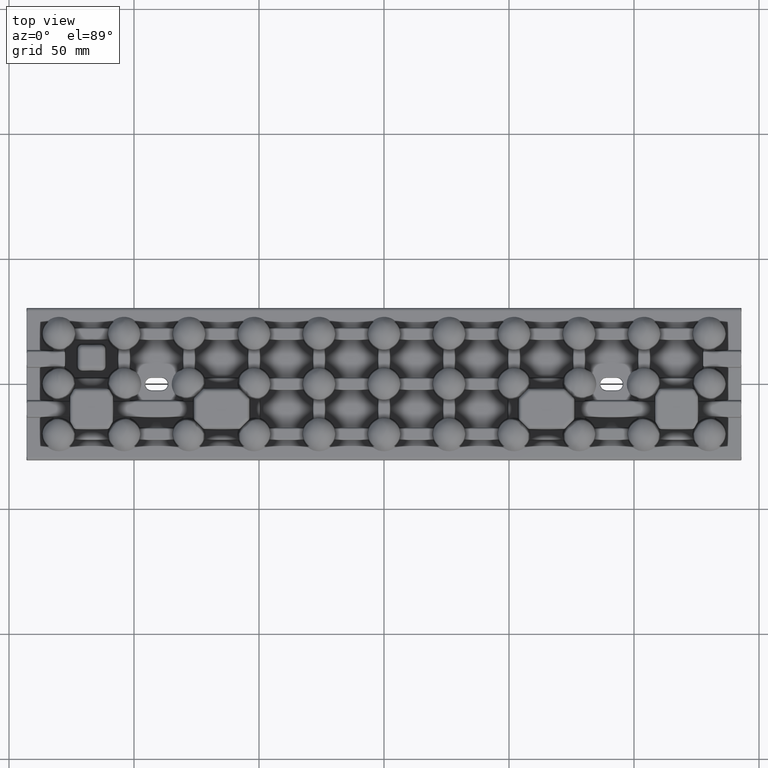
[diagram: clean part render]
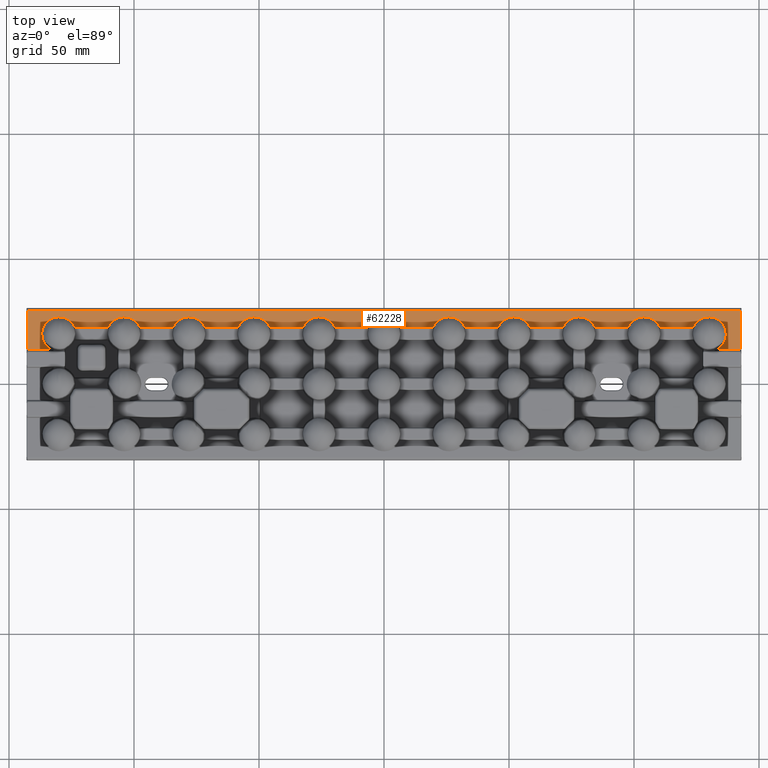
[diagram: same view with one face highlighted and labeled with its STEP entity id]
A machine part, top view. The second image highlights one B-rep face of the part: STEP entity #62228.
In plain terms, the highlighted planar face has unit normal (-0, 0, 1).
Its self-contained STEP definition (entity closure, byte-faithful):
#525 = VERTEX_POINT ( 'NONE', #96954 ) ;
#1061 = CARTESIAN_POINT ( 'NONE',  ( 71.68403363611628300, 22.74142219370215300, 2.000000000000000000 ) ) ;
#1085 = DIRECTION ( 'NONE',  ( 1.000000000000000000, -0.0000000000000000000, 0.0000000000000000000 ) ) ;
#1387 = DIRECTION ( 'NONE',  ( 1.000000000000000000, 3.844641663027053000E-016, 0.0000000000000000000 ) ) ;
#1473 = B_SPLINE_CURVE_WITH_KNOTS ( 'NONE', 3,
 ( #45014, #36620, #53396, #3391, #61727, #11747, #70157, #20220, #78554, #28593, #86902, #36974, #95334, #45369, #103725, #53768, #3754, #62093, #12123, #70524, #20588, #78909, #28951, #87262, #37343, #95680, #45726, #104091, #54134, #4118, #62459, #12498, #70898, #20955, #79279, #29316, #87631, #37714, #96028, #46096, #104468, #54495, #4463, #62822, #12876, #71272, #21318, #79640, #29691, #87992 ),
 .UNSPECIFIED., .F., .F.,
 ( 4, 2, 2, 2, 2, 2, 2, 2, 2, 2, 2, 2, 2, 2, 2, 2, 2, 2, 2, 2, 2, 2, 2, 2, 4 ),
 ( 0.01050679117040168900, 0.01216088172284491300, 0.01381497227528813800, 0.01546906282773136100, 0.01629610810395297500, 0.01712315338017458500, 0.01795019865639619800, 0.01877724393261780800, 0.02043133448506103500, 0.02125837976128268400, 0.02208542503750433500, 0.02291247031372598700, 0.02373951558994764200, 0.02539360614239089000, 0.02704769669483413800, 0.02870178724727739200, 0.02911530988538819900, 0.02952883252349900600, 0.03035587779972062600, 0.03200996835216387400, 0.03283701362838549500, 0.03366405890460711500, 0.03449110418082873600, 0.03531814945705035600, 0.03697224000949365900 ),
 .UNSPECIFIED. ) ;
#1581 = ORIENTED_EDGE ( 'NONE', *, *, #22770, .F. ) ;
#1624 = CARTESIAN_POINT ( 'NONE',  ( -45.68403368330071100, 22.74142219370213900, 2.000000000000000000 ) ) ;
#1893 = CARTESIAN_POINT ( 'NONE',  ( 53.65886335899717400, 26.71010636995210100, 2.000000000000000900 ) ) ;
#1982 = CARTESIAN_POINT ( 'NONE',  ( -47.15318976483481400, 24.94780777290223000, 1.999999999999998700 ) ) ;
#2262 = CARTESIAN_POINT ( 'NONE',  ( 46.92741899588675400, 24.71284940532203900, 2.000000000000000900 ) ) ;
#2339 = CARTESIAN_POINT ( 'NONE',  ( -54.29938008339328800, 26.52378527264588500, 1.999999999999998200 ) ) ;
#3391 = CARTESIAN_POINT ( 'NONE',  ( -124.8295459170856700, 24.62497408288704300, 2.000000000000000000 ) ) ;
#3461 = CARTESIAN_POINT ( 'NONE',  ( 31.07662389358332400, 24.70830153699674300, 2.000000000000000000 ) ) ;
#3751 = EDGE_CURVE ( 'NONE', #100229, #30553, #17064, .T. ) ;
#3754 = CARTESIAN_POINT ( 'NONE',  ( -131.3813885012870100, 26.78502122997835900, 1.999999999999998700 ) ) ;
#3819 = CARTESIAN_POINT ( 'NONE',  ( 24.66840279518008900, 26.80502343992601800, 1.999999999999999600 ) ) ;
#3978 = CARTESIAN_POINT ( 'NONE',  ( -8.743261924239526700E-015, 22.74142219370212500, 2.000000000000000000 ) ) ;
#4021 = EDGE_CURVE ( 'NONE', #9704, #51110, #84099, .T. ) ;
#4118 = CARTESIAN_POINT ( 'NONE',  ( -136.6881866202876700, 21.68818897065874700, 2.000000000000000000 ) ) ;
#4186 = CARTESIAN_POINT ( 'NONE',  ( 19.68403363611626800, 22.74142219370213200, 2.000000000000000000 ) ) ;
#4306 = CARTESIAN_POINT ( 'NONE',  ( -98.31043581871257700, 23.92543141037349500, 2.000000000000126100 ) ) ;
#4463 = CARTESIAN_POINT ( 'NONE',  ( -135.6995518879815800, 16.09428452817178400, 2.000000000000000900 ) ) ;
#4672 = CARTESIAN_POINT ( 'NONE',  ( -103.6633250690733500, 26.89732937972348000, 2.000000000000001800 ) ) ;
#4801 = CARTESIAN_POINT ( 'NONE',  ( 83.68956418128735200, 23.92543141037349100, 2.000000000000126600 ) ) ;
#5037 = CARTESIAN_POINT ( 'NONE',  ( -110.0366157451012200, 23.34722910782369400, 2.000000000000016400 ) ) ;
#5163 = CARTESIAN_POINT ( 'NONE',  ( 78.33667493092677600, 26.89732937972347300, 1.999999999999999100 ) ) ;
#5244 = CARTESIAN_POINT ( 'NONE',  ( -22.48139286674539500, 25.96433862969999900, 2.000000000000000900 ) ) ;
#5362 = CARTESIAN_POINT ( 'NONE',  ( -76.66701719146409700, 26.77987722715999700, 2.000000000000048000 ) ) ;
#5408 = CARTESIAN_POINT ( 'NONE',  ( 108.3475486365031300, 25.39348038392911300, 1.999999999999999600 ) ) ;
#5458 = CARTESIAN_POINT ( 'NONE',  ( 3.518607133254579600, 25.96433862970001600, 2.000000000000001800 ) ) ;
#5508 = CARTESIAN_POINT ( 'NONE',  ( 136.8800571590407700, 19.46677785379592900, 2.000000000000001800 ) ) ;
#5604 = CARTESIAN_POINT ( 'NONE',  ( -29.51261776644699400, 25.96782557411317400, 2.000000000000344200 ) ) ;
#5717 = CARTESIAN_POINT ( 'NONE',  ( -83.49618869553401600, 24.19940417971495000, 1.999999999999999600 ) ) ;
#5767 = CARTESIAN_POINT ( 'NONE',  ( 101.3839113837305800, 26.40594479879622700, 2.000000000000000400 ) ) ;
#5819 = CARTESIAN_POINT ( 'NONE',  ( -3.512617766447011300, 25.96782557411317100, 2.000000000000345900 ) ) ;
#5873 = CARTESIAN_POINT ( 'NONE',  ( 135.5278999141507400, 24.18065380832087300, 1.999999999999998700 ) ) ;
#6231 = CARTESIAN_POINT ( 'NONE',  ( 129.7330463235023800, 26.89771426808825800, 2.000000000000019500 ) ) ;
#6237 = VERTEX_POINT ( 'NONE', #68507 ) ;
#6427 = VERTEX_POINT ( 'NONE', #29113 ) ;
#6593 = CARTESIAN_POINT ( 'NONE',  ( 123.6840336361162800, 22.74142219370217100, 2.000000000000000000 ) ) ;
#6824 = B_SPLINE_CURVE_WITH_KNOTS ( 'NONE', 3,
 ( #80221, #21902, #38646, #96980, #47048, #105414, #55392, #5408, #63775, #13809, #72211, #22272, #80595, #30620, #88935, #39009, #97342, #47411, #105779, #55760, #5767, #64127, #14178, #72583, #22624, #80949, #30987, #89298, #39361, #97708, #47782, #106137 ),
 .UNSPECIFIED., .F., .F.,
 ( 4, 2, 2, 2, 2, 2, 2, 2, 2, 2, 2, 2, 2, 2, 2, 4 ),
 ( 0.01050679117040258200, 0.01150546915756741800, 0.01250414714473225600, 0.01350282513189709200, 0.01450150311906192900, 0.01550018110622676500, 0.01649885909339160100, 0.01749753708055643700, 0.01849621506772127600, 0.02049357104205099000, 0.02149224902921586400, 0.02249092701638074500, 0.02348960500354561900, 0.02448828299071050000, 0.02548696097787537400, 0.02648563896504025100 ),
 .UNSPECIFIED. ) ;
#7005 = ORIENTED_EDGE ( 'NONE', *, *, #47796, .T. ) ;
#7018 = CARTESIAN_POINT ( 'NONE',  ( 71.96338425489877000, 23.34722910782368300, 2.000000000000016900 ) ) ;
#8262 = DIRECTION ( 'NONE',  ( 1.000000000000000000, 3.844641663027053000E-016, 0.0000000000000000000 ) ) ;
#8266 = EDGE_CURVE ( 'NONE', #59621, #31580, #10720, .T. ) ;
#8821 = EDGE_LOOP ( 'NONE', ( #42889, #78188, #62479, #38361, #83918, #48753, #74436, #76119, #34414, #30136, #75894, #7005, #40722, #17994, #95043, #51969, #96937, #83819, #1581, #69050, #68134, #70832, #16427, #75780, #90425, #10477 ) ) ;
#9450 = DIRECTION ( 'NONE',  ( -0.0000000000000000000, 1.000000000000000000, -0.0000000000000000000 ) ) ;
#9704 = VERTEX_POINT ( 'NONE', #55310 ) ;
#9882 = CARTESIAN_POINT ( 'NONE',  ( 58.03490855911542200, 23.35028556358901500, 2.000000000000127000 ) ) ;
#10246 = CARTESIAN_POINT ( 'NONE',  ( 52.67279278684331700, 26.87350029363054200, 2.000000000000048000 ) ) ;
#10327 = CARTESIAN_POINT ( 'NONE',  ( -47.92227134485957400, 25.59953831529823600, 1.999999999999999100 ) ) ;
#10477 = ORIENTED_EDGE ( 'NONE', *, *, #78360, .T. ) ;
#10509 = LINE ( 'NONE', #95835, #35394 ) ;
#10594 = CARTESIAN_POINT ( 'NONE',  ( 46.30985570189906800, 23.92467734612563400, 2.000000000000016400 ) ) ;
#10676 = CARTESIAN_POINT ( 'NONE',  ( -55.22142261670096300, 26.12818340793718600, 2.000000000000000400 ) ) ;
#10720 = B_SPLINE_CURVE_WITH_KNOTS ( 'NONE', 3,
 ( #73129, #14729, #64674, #13401, #71789, #21851, #80164, #30216, #88522, #38596, #96927, #46994, #105364, #55339, #5362, #63728, #13760, #72159, #22221, #80544, #30571, #88880, #38962, #97294, #47362, #105725, #55708, #5717, #64075, #14129, #72536, #22577 ),
 .UNSPECIFIED., .F., .F.,
 ( 4, 2, 2, 2, 2, 2, 2, 2, 2, 2, 2, 2, 2, 2, 2, 4 ),
 ( 0.01050679117040293100, 0.01150546915756781900, 0.01250414714473270700, 0.01350282513189759300, 0.01450150311906248100, 0.01550018110622736900, 0.01649885909339225700, 0.01749753708055714500, 0.01849621506772203300, 0.02049357104205185000, 0.02149224902921675900, 0.02249092701638166800, 0.02348960500354657600, 0.02448828299071148500, 0.02548696097787639400, 0.02648563896504130300 ),
 .UNSPECIFIED. ) ;
#11705 = VERTEX_POINT ( 'NONE', #72161 ) ;
#11747 = CARTESIAN_POINT ( 'NONE',  ( -126.0767058337017100, 25.72650529445625300, 2.000000000000000400 ) ) ;
#11822 = CARTESIAN_POINT ( 'NONE',  ( 30.34754863650315900, 25.39348038392907400, 2.000000000000000000 ) ) ;
#12123 = CARTESIAN_POINT ( 'NONE',  ( -132.4490486307383300, 26.46762314007032700, 2.000000000000278000 ) ) ;
#12199 = CARTESIAN_POINT ( 'NONE',  ( 23.38391138373050600, 26.40594479879618800, 2.000000000000000900 ) ) ;
#12498 = CARTESIAN_POINT ( 'NONE',  ( -136.8841424345645200, 20.44388402342935200, 1.999999999999999600 ) ) ;
#12705 = CARTESIAN_POINT ( 'NONE',  ( -98.92337610641671100, 24.70830153699671800, 2.000000000000000900 ) ) ;
#12876 = CARTESIAN_POINT ( 'NONE',  ( -135.2013613072751100, 15.43621432150835900, 2.000000000000000900 ) ) ;
#12999 = CARTESIAN_POINT ( 'NONE',  ( -97.68403368330074000, 22.74142219370216000, 2.000000000000000000 ) ) ;
#13071 = CARTESIAN_POINT ( 'NONE',  ( -105.3315972048198400, 26.80502343992605300, 2.000000000000000000 ) ) ;
#13189 = CARTESIAN_POINT ( 'NONE',  ( 133.5060753273697000, 14.01131569409189800, 2.000000000000000000 ) ) ;
#13207 = CARTESIAN_POINT ( 'NONE',  ( 83.07662389358328900, 24.70830153699677500, 2.000000000000000400 ) ) ;
#13288 = CARTESIAN_POINT ( 'NONE',  ( -19.96509144088458100, 23.35028556358903600, 2.000000000000127500 ) ) ;
#13401 = CARTESIAN_POINT ( 'NONE',  ( -72.31043581871261900, 23.92543141037347400, 2.000000000000125700 ) ) ;
#13440 = CARTESIAN_POINT ( 'NONE',  ( -110.3159663638836700, 22.74142219370216400, 2.000000000000000000 ) ) ;
#13552 = CARTESIAN_POINT ( 'NONE',  ( 134.6130077430347300, 14.83575689011853200, 2.000000000000000900 ) ) ;
#13568 = CARTESIAN_POINT ( 'NONE',  ( 76.66840279518012800, 26.80502343992608500, 1.999999999999997800 ) ) ;
#13647 = CARTESIAN_POINT ( 'NONE',  ( -23.37998032808857500, 26.40442383509638800, 2.000000000000249600 ) ) ;
#13760 = CARTESIAN_POINT ( 'NONE',  ( -77.66332506907335200, 26.89732937972348000, 2.000000000000001800 ) ) ;
#13809 = CARTESIAN_POINT ( 'NONE',  ( 107.5186071332545600, 25.96433862970001300, 2.000000000000001300 ) ) ;
#13865 = CARTESIAN_POINT ( 'NONE',  ( 2.620019671911416400, 26.40442383509640600, 2.000000000000250000 ) ) ;
#13912 = CARTESIAN_POINT ( 'NONE',  ( 136.9094586007898000, 20.02423744197734500, 2.000000000000000000 ) ) ;
#14014 = CARTESIAN_POINT ( 'NONE',  ( -30.34199554471782200, 25.39795377517398500, 2.000000000000000400 ) ) ;
#14129 = CARTESIAN_POINT ( 'NONE',  ( -84.03661574510121600, 23.34722910782367600, 2.000000000000016900 ) ) ;
#14178 = CARTESIAN_POINT ( 'NONE',  ( 100.4873822335530600, 25.96782557411320300, 2.000000000000344200 ) ) ;
#14219 = CARTESIAN_POINT ( 'NONE',  ( -4.341995544717814700, 25.39795377517398800, 1.999999999999998700 ) ) ;
#14276 = CARTESIAN_POINT ( 'NONE',  ( 134.5897527558156800, 25.18505216401842300, 1.999999999999999600 ) ) ;
#14635 = CARTESIAN_POINT ( 'NONE',  ( 128.9083000464806600, 26.81897808859146800, 1.999999999999998700 ) ) ;
#14729 = CARTESIAN_POINT ( 'NONE',  ( -71.81295640468401600, 23.04840657323874000, 2.000000000000000900 ) ) ;
#15408 = VECTOR ( 'NONE', #28707, 1000.000000000000000 ) ;
#15443 = CARTESIAN_POINT ( 'NONE',  ( 71.68403363611628300, 22.74142219370215300, 2.000000000000000000 ) ) ;
#16251 = EDGE_CURVE ( 'NONE', #11705, #58811, #52688, .T. ) ;
#16427 = ORIENTED_EDGE ( 'NONE', *, *, #55676, .F. ) ;
#17064 = LINE ( 'NONE', #89982, #103215 ) ;
#17359 = LINE ( 'NONE', #102752, #34332 ) ;
#17994 = ORIENTED_EDGE ( 'NONE', *, *, #78515, .T. ) ;
#18209 = CARTESIAN_POINT ( 'NONE',  ( 110.3159663166991900, 22.74142219370216400, 2.000000000000000000 ) ) ;
#18359 = CARTESIAN_POINT ( 'NONE',  ( 57.49787271980760300, 24.19700556022038300, 2.000000000000001800 ) ) ;
#18723 = CARTESIAN_POINT ( 'NONE',  ( 51.32756888647256200, 26.89737252408379900, 2.000000000000000900 ) ) ;
#18804 = CARTESIAN_POINT ( 'NONE',  ( -48.77293862906505200, 26.12530864271638400, 2.000000000000249100 ) ) ;
#19085 = CARTESIAN_POINT ( 'NONE',  ( 45.81312116069186400, 23.04879900970685100, 2.000000000000019500 ) ) ;
#19162 = CARTESIAN_POINT ( 'NONE',  ( -56.07186254801212000, 25.60377779600749500, 2.000000000000345500 ) ) ;
#19204 = VECTOR ( 'NONE', #1085, 1000.000000000000000 ) ;
#19598 = DIRECTION ( 'NONE',  ( 1.000000000000000000, -3.844641663027053000E-016, 0.0000000000000000000 ) ) ;
#19844 = CARTESIAN_POINT ( 'NONE',  ( 142.4984859507544300, 13.77131854326629700, 2.000000000000000000 ) ) ;
#20220 = CARTESIAN_POINT ( 'NONE',  ( -127.2988571125833500, 26.36844435502074200, 2.000000000000307800 ) ) ;
#20290 = CARTESIAN_POINT ( 'NONE',  ( 29.51860713325454500, 25.96433862970004100, 2.000000000000000000 ) ) ;
#20588 = CARTESIAN_POINT ( 'NONE',  ( -133.2065514136881700, 26.13297702569553800, 1.999999999999998700 ) ) ;
#20657 = CARTESIAN_POINT ( 'NONE',  ( 22.48738223355295000, 25.96782557411314200, 2.000000000000344600 ) ) ;
#20739 = FACE_OUTER_BOUND ( 'NONE', #8821, .T. ) ;
#20955 = CARTESIAN_POINT ( 'NONE',  ( -136.9094387876033600, 20.02580886452776500, 2.000000000000000000 ) ) ;
#21155 = CARTESIAN_POINT ( 'NONE',  ( -99.65245136349685100, 25.39348038392908100, 2.000000000000001300 ) ) ;
#21318 = CARTESIAN_POINT ( 'NONE',  ( -134.6192237337673100, 14.84122988422828700, 2.000000000000001800 ) ) ;
#21521 = CARTESIAN_POINT ( 'NONE',  ( -106.6160886162694500, 26.40594479879622700, 1.999999999999998200 ) ) ;
#21646 = CARTESIAN_POINT ( 'NONE',  ( 82.34754863650320500, 25.39348038392903500, 2.000000000000000400 ) ) ;
#21851 = CARTESIAN_POINT ( 'NONE',  ( -72.92337610641666900, 24.70830153699670700, 2.000000000000000900 ) ) ;
#21902 = CARTESIAN_POINT ( 'NONE',  ( 110.1870435953159800, 23.04840657323876500, 1.999999999999999100 ) ) ;
#21953 = VERTEX_POINT ( 'NONE', #18209 ) ;
#21999 = CARTESIAN_POINT ( 'NONE',  ( 135.1985135776881700, 15.43279648219079700, 2.000000000000383200 ) ) ;
#22015 = CARTESIAN_POINT ( 'NONE',  ( 75.38391138373060600, 26.40594479879623800, 1.999999999999999600 ) ) ;
#22103 = CARTESIAN_POINT ( 'NONE',  ( -24.34113664100284400, 26.71010636995210100, 1.999999999999997800 ) ) ;
#22221 = CARTESIAN_POINT ( 'NONE',  ( -79.33159720481978600, 26.80502343992607500, 2.000000000000002200 ) ) ;
#22272 = CARTESIAN_POINT ( 'NONE',  ( 106.6200196719113400, 26.40442383509638800, 2.000000000000249600 ) ) ;
#22317 = CARTESIAN_POINT ( 'NONE',  ( 1.658863358997132900, 26.71010636995212600, 1.999999999999999100 ) ) ;
#22377 = CARTESIAN_POINT ( 'NONE',  ( 136.8843079929510200, 20.44211632433898300, 2.000000000000000900 ) ) ;
#22467 = CARTESIAN_POINT ( 'NONE',  ( -31.07258100411326800, 24.71284940532203900, 1.999999999999999600 ) ) ;
#22577 = CARTESIAN_POINT ( 'NONE',  ( -84.31596636388367500, 22.74142219370215300, 2.000000000000000000 ) ) ;
#22624 = CARTESIAN_POINT ( 'NONE',  ( 99.65800445528218200, 25.39795377517399900, 2.000000000000000400 ) ) ;
#22673 = CARTESIAN_POINT ( 'NONE',  ( -5.072581004113274600, 24.71284940532203900, 2.000000000000000900 ) ) ;
#22723 = CARTESIAN_POINT ( 'NONE',  ( 133.9303827433578000, 25.70043393727760900, 1.999999999999996200 ) ) ;
#22770 = EDGE_CURVE ( 'NONE', #525, #56014, #63526, .T. ) ;
#23076 = CARTESIAN_POINT ( 'NONE',  ( 127.5570544101998800, 26.48777687495147900, 1.999999999999999100 ) ) ;
#23766 = CARTESIAN_POINT ( 'NONE',  ( 8.743261924239526700E-015, 22.74142219370212100, 2.000000000000000000 ) ) ;
#24937 = CARTESIAN_POINT ( 'NONE',  ( 0.0000000000000000000, 0.0000000000000000000, 2.000000000000000000 ) ) ;
#25070 = EDGE_CURVE ( 'NONE', #107484, #75917, #75268, .T. ) ;
#25666 = VERTEX_POINT ( 'NONE', #19844 ) ;
#26131 = EDGE_CURVE ( 'NONE', #25666, #62277, #77943, .T. ) ;
#26480 = VERTEX_POINT ( 'NONE', #72271 ) ;
#26710 = CARTESIAN_POINT ( 'NONE',  ( 56.84681023516515800, 24.94780777290220900, 2.000000000000000000 ) ) ;
#27082 = CARTESIAN_POINT ( 'NONE',  ( 49.70061991660671900, 26.52378527264589500, 1.999999999999998700 ) ) ;
#27168 = CARTESIAN_POINT ( 'NONE',  ( -49.69812992924821800, 26.52287293732658200, 1.999999999999998700 ) ) ;
#27531 = CARTESIAN_POINT ( 'NONE',  ( -56.84188014826261800, 24.95268246277602800, 2.000000000000000000 ) ) ;
#28306 = CARTESIAN_POINT ( 'NONE',  ( 32.18704359531600500, 23.04840657323873300, 2.000000000000001300 ) ) ;
#28593 = CARTESIAN_POINT ( 'NONE',  ( -128.0891229049415800, 26.64215272814847100, 2.000000000000001300 ) ) ;
#28660 = CARTESIAN_POINT ( 'NONE',  ( 28.62001967191137900, 26.40442383509641600, 2.000000000000248700 ) ) ;
#28707 = DIRECTION ( 'NONE',  ( 1.000000000000000000, -3.844641663027053000E-016, 0.0000000000000000000 ) ) ;
#28951 = CARTESIAN_POINT ( 'NONE',  ( -133.9167426579385000, 25.70975614590128400, 1.999999999999996700 ) ) ;
#29024 = CARTESIAN_POINT ( 'NONE',  ( 21.65800445528216400, 25.39795377517396700, 1.999999999999999100 ) ) ;
#29113 = CARTESIAN_POINT ( 'NONE',  ( 45.68403363611626100, 22.74142219370214200, 2.000000000000000000 ) ) ;
#29316 = CARTESIAN_POINT ( 'NONE',  ( -136.8802252202792700, 19.46819107766179600, 1.999999999999998700 ) ) ;
#29430 = VECTOR ( 'NONE', #107752, 1000.000000000000000 ) ;
#29520 = CARTESIAN_POINT ( 'NONE',  ( -100.4813928667454400, 25.96433862970002700, 2.000000000000000400 ) ) ;
#29691 = CARTESIAN_POINT ( 'NONE',  ( -133.5064853437754100, 14.01151046092394400, 1.999999999999999100 ) ) ;
#29743 = LINE ( 'NONE', #78672, #15408 ) ;
#29879 = CARTESIAN_POINT ( 'NONE',  ( -107.5126177664470200, 25.96782557411314900, 2.000000000000345500 ) ) ;
#30015 = CARTESIAN_POINT ( 'NONE',  ( -58.31596636388368900, 22.74142219370214200, 2.000000000000000000 ) ) ;
#30016 = CARTESIAN_POINT ( 'NONE',  ( 81.51860713325459100, 25.96433862970002300, 2.000000000000001300 ) ) ;
#30097 = CARTESIAN_POINT ( 'NONE',  ( -19.68403368330072200, 22.74142219370212800, 2.000000000000000000 ) ) ;
#30136 = ORIENTED_EDGE ( 'NONE', *, *, #70085, .T. ) ;
#30216 = CARTESIAN_POINT ( 'NONE',  ( -73.65245136349680900, 25.39348038392907700, 2.000000000000001300 ) ) ;
#30314 = CARTESIAN_POINT ( 'NONE',  ( 6.315966316699254800, 22.74142219370212800, 2.000000000000000000 ) ) ;
#30366 = CARTESIAN_POINT ( 'NONE',  ( 135.6980627441324400, 16.09201721426330100, 2.000000000000000400 ) ) ;
#30379 = CARTESIAN_POINT ( 'NONE',  ( 74.48738223355303500, 25.96782557411319200, 2.000000000000344600 ) ) ;
#30465 = CARTESIAN_POINT ( 'NONE',  ( -25.32720721315671500, 26.87350029363056000, 2.000000000000048000 ) ) ;
#30553 = VERTEX_POINT ( 'NONE', #54644 ) ;
#30571 = CARTESIAN_POINT ( 'NONE',  ( -80.61608861626940800, 26.40594479879626600, 1.999999999999999600 ) ) ;
#30620 = CARTESIAN_POINT ( 'NONE',  ( 105.6588633589971200, 26.71010636995209400, 2.000000000000001300 ) ) ;
#30671 = CARTESIAN_POINT ( 'NONE',  ( 0.6727927868432751500, 26.87350029363056700, 2.000000000000048400 ) ) ;
#30723 = CARTESIAN_POINT ( 'NONE',  ( 136.7923236193077200, 21.13414452556125100, 2.000000000000000400 ) ) ;
#30827 = CARTESIAN_POINT ( 'NONE',  ( -31.69014429810096400, 23.92467734612560200, 2.000000000000016400 ) ) ;
#30986 = VECTOR ( 'NONE', #9450, 1000.000000000000000 ) ;
#30987 = CARTESIAN_POINT ( 'NONE',  ( 98.92741899588675400, 24.71284940532207500, 2.000000000000000000 ) ) ;
#31028 = CARTESIAN_POINT ( 'NONE',  ( -5.690144298100944900, 23.92467734612562000, 2.000000000000014700 ) ) ;
#31084 = CARTESIAN_POINT ( 'NONE',  ( 133.2197705473840900, 26.12615882705179300, 2.000000000000001300 ) ) ;
#31445 = CARTESIAN_POINT ( 'NONE',  ( 126.0844210508273700, 25.73172958666723500, 2.000000000000000900 ) ) ;
#31580 = VERTEX_POINT ( 'NONE', #58692 ) ;
#31673 = DIRECTION ( 'NONE',  ( 0.0000000000000000000, -1.000000000000000000, 0.0000000000000000000 ) ) ;
#31691 = CARTESIAN_POINT ( 'NONE',  ( -45.68403368330071100, 22.74142219370213900, 2.000000000000000000 ) ) ;
#32362 = EDGE_CURVE ( 'NONE', #9704, #75459, #17359, .T. ) ;
#33353 = EDGE_CURVE ( 'NONE', #21953, #26480, #6824, .T. ) ;
#33484 = CARTESIAN_POINT ( 'NONE',  ( -8.743261924239526700E-015, 22.74142219370212500, 2.000000000000000000 ) ) ;
#33519 = LINE ( 'NONE', #96049, #72672 ) ;
#34332 = VECTOR ( 'NONE', #19598, 1000.000000000000000 ) ;
#34414 = ORIENTED_EDGE ( 'NONE', *, *, #25070, .F. ) ;
#35128 = CARTESIAN_POINT ( 'NONE',  ( 56.07772865514046100, 25.59953831529824000, 2.000000000000000900 ) ) ;
#35394 = VECTOR ( 'NONE', #37513, 1000.000000000000000 ) ;
#35482 = CARTESIAN_POINT ( 'NONE',  ( 48.77857738329902300, 26.12818340793717600, 2.000000000000000400 ) ) ;
#35570 = CARTESIAN_POINT ( 'NONE',  ( -50.66701719146410500, 26.77987722715998600, 2.000000000000048000 ) ) ;
#35913 = CARTESIAN_POINT ( 'NONE',  ( -57.49618869553400900, 24.19940417971492500, 2.000000000000001800 ) ) ;
#36620 = CARTESIAN_POINT ( 'NONE',  ( -123.8975658309760200, 23.24987433589931400, 1.999999999999999600 ) ) ;
#36974 = CARTESIAN_POINT ( 'NONE',  ( -128.8983913148779300, 26.81743135039007700, 1.999999999999961400 ) ) ;
#37042 = CARTESIAN_POINT ( 'NONE',  ( 27.65886335899706700, 26.71010636995212900, 1.999999999999999100 ) ) ;
#37343 = CARTESIAN_POINT ( 'NONE',  ( -134.5769241011640800, 25.19642881061129100, 2.000000000000001800 ) ) ;
#37350 = CARTESIAN_POINT ( 'NONE',  ( 6.315966316699254800, 22.74142219370212800, 2.000000000000000000 ) ) ;
#37410 = CARTESIAN_POINT ( 'NONE',  ( 20.92741899588669000, 24.71284940532201800, 2.000000000000000900 ) ) ;
#37513 = DIRECTION ( 'NONE',  ( 1.000000000000000000, -3.844641663027053000E-016, 0.0000000000000000000 ) ) ;
#37589 = LINE ( 'NONE', #59351, #101525 ) ;
#37714 = CARTESIAN_POINT ( 'NONE',  ( -136.7006122703139700, 18.36716247236423200, 2.000000000000000400 ) ) ;
#37908 = CARTESIAN_POINT ( 'NONE',  ( -101.3799803280885800, 26.40442383509641600, 2.000000000000249600 ) ) ;
#38040 = CARTESIAN_POINT ( 'NONE',  ( 84.18704359531598400, 23.04840657323874000, 2.000000000000001300 ) ) ;
#38277 = CARTESIAN_POINT ( 'NONE',  ( -108.3419955447178000, 25.39795377517398500, 2.000000000000000400 ) ) ;
#38361 = ORIENTED_EDGE ( 'NONE', *, *, #65558, .T. ) ;
#38405 = CARTESIAN_POINT ( 'NONE',  ( 80.62001967191146400, 26.40442383509637700, 2.000000000000248700 ) ) ;
#38485 = CARTESIAN_POINT ( 'NONE',  ( -20.50212728019239700, 24.19700556022035800, 1.999999999999999100 ) ) ;
#38596 = CARTESIAN_POINT ( 'NONE',  ( -74.48139286674540900, 25.96433862969999100, 2.000000000000000000 ) ) ;
#38646 = CARTESIAN_POINT ( 'NONE',  ( 110.0349085591153500, 23.35028556358907200, 2.000000000000126100 ) ) ;
#38693 = CARTESIAN_POINT ( 'NONE',  ( 5.497872719807593200, 24.19700556022038300, 1.999999999999999100 ) ) ;
#38743 = CARTESIAN_POINT ( 'NONE',  ( 136.1155611407916100, 16.81061401903694000, 2.000000000000000400 ) ) ;
#38764 = CARTESIAN_POINT ( 'NONE',  ( 73.65800445528225300, 25.39795377517404900, 2.000000000000001300 ) ) ;
#38846 = CARTESIAN_POINT ( 'NONE',  ( -26.67243111352743100, 26.89737252408376700, 2.000000000000000900 ) ) ;
#38962 = CARTESIAN_POINT ( 'NONE',  ( -81.51261776644693700, 25.96782557411322000, 2.000000000000344200 ) ) ;
#39009 = CARTESIAN_POINT ( 'NONE',  ( 104.6727927868432600, 26.87350029363054900, 2.000000000000048000 ) ) ;
#39046 = CARTESIAN_POINT ( 'NONE',  ( -0.6724311135274632100, 26.89737252408377100, 2.000000000000001800 ) ) ;
#39104 = CARTESIAN_POINT ( 'NONE',  ( 136.6033683887970700, 21.94261802546829500, 1.999999999999999600 ) ) ;
#39201 = CARTESIAN_POINT ( 'NONE',  ( -32.18687883930812900, 23.04879900970686500, 2.000000000000019500 ) ) ;
#39361 = CARTESIAN_POINT ( 'NONE',  ( 98.30985570189902500, 23.92467734612564500, 2.000000000000016900 ) ) ;
#39408 = CARTESIAN_POINT ( 'NONE',  ( -6.186878839308130700, 23.04879900970686200, 2.000000000000020000 ) ) ;
#39457 = CARTESIAN_POINT ( 'NONE',  ( 132.4598265420627000, 26.46367448313843700, 2.000000000000034600 ) ) ;
#39637 = VERTEX_POINT ( 'NONE', #88110 ) ;
#39809 = CARTESIAN_POINT ( 'NONE',  ( 124.8344224334673000, 24.63101512277688300, 2.000000000000001300 ) ) ;
#40722 = ORIENTED_EDGE ( 'NONE', *, *, #81635, .F. ) ;
#41370 = CARTESIAN_POINT ( 'NONE',  ( -123.6840336833007400, 22.74142219370217100, 2.000000000000000000 ) ) ;
#41391 = LINE ( 'NONE', #51112, #19204 ) ;
#41893 = CARTESIAN_POINT ( 'NONE',  ( -32.31596636388370300, 22.74142219370213500, 2.000000000000000000 ) ) ;
#42755 = CARTESIAN_POINT ( 'NONE',  ( 84.31596631669921700, 22.74142219370215700, 2.000000000000000000 ) ) ;
#42889 = ORIENTED_EDGE ( 'NONE', *, *, #79144, .F. ) ;
#43247 = EDGE_CURVE ( 'NONE', #30553, #6237, #90671, .T. ) ;
#43508 = CARTESIAN_POINT ( 'NONE',  ( 55.22706137093497600, 26.12530864271636600, 2.000000000000247800 ) ) ;
#43535 = CARTESIAN_POINT ( 'NONE',  ( 0.0000000000000000000, 13.77131854326629700, 2.000000000000000000 ) ) ;
#43593 = CARTESIAN_POINT ( 'NONE',  ( -46.31043581871255600, 23.92543141037345900, 2.000000000000126600 ) ) ;
#43865 = CARTESIAN_POINT ( 'NONE',  ( 47.92813745198790800, 25.60377779600748500, 2.000000000000344600 ) ) ;
#43897 = B_SPLINE_CURVE_WITH_KNOTS ( 'NONE', 3,
 ( #1624, #85135, #93546, #43593, #101953, #51985, #1982, #60313, #10327, #68720, #18804, #77141, #27168, #85489, #35570, #93914, #43951, #102305, #52357, #2339, #60666, #10676, #69086, #19162, #77477, #27531, #85848, #35913, #94274, #44316, #102679, #52700 ),
 .UNSPECIFIED., .F., .F.,
 ( 4, 2, 2, 2, 2, 2, 2, 2, 2, 2, 2, 2, 2, 2, 2, 4 ),
 ( 0.01050679117040253700, 0.01150546915756738000, 0.01250414714473222300, 0.01350282513189706600, 0.01450150311906190900, 0.01550018110622675100, 0.01649885909339159400, 0.01749753708055643700, 0.01849621506772128000, 0.02049357104205098600, 0.02149224902921585000, 0.02249092701638071000, 0.02348960500354557700, 0.02448828299071043700, 0.02548696097787529800, 0.02648563896504016100 ),
 .UNSPECIFIED. ) ;
#43951 = CARTESIAN_POINT ( 'NONE',  ( -51.66332506907331600, 26.89732937972348000, 2.000000000000001300 ) ) ;
#44316 = CARTESIAN_POINT ( 'NONE',  ( -58.03661574510120100, 23.34722910782366200, 2.000000000000017800 ) ) ;
#45014 = CARTESIAN_POINT ( 'NONE',  ( -123.6840336833007400, 22.74142219370217100, 2.000000000000000000 ) ) ;
#45083 = CARTESIAN_POINT ( 'NONE',  ( 32.03490855911542200, 23.35028556358902900, 2.000000000000126100 ) ) ;
#45369 = CARTESIAN_POINT ( 'NONE',  ( -129.7251457570506000, 26.89745045126100800, 2.000000000000002200 ) ) ;
#45438 = CARTESIAN_POINT ( 'NONE',  ( 26.67279278684321000, 26.87350029363056700, 2.000000000000049300 ) ) ;
#45726 = CARTESIAN_POINT ( 'NONE',  ( -135.5200567063141100, 24.19182782132984500, 2.000000000000000900 ) ) ;
#45799 = CARTESIAN_POINT ( 'NONE',  ( 20.30985570189903600, 23.92467734612560500, 2.000000000000016000 ) ) ;
#46096 = CARTESIAN_POINT ( 'NONE',  ( -136.2381838096518700, 17.06730195596935600, 2.000000000000000400 ) ) ;
#46296 = CARTESIAN_POINT ( 'NONE',  ( -102.3411366410029300, 26.71010636995211800, 1.999999999999999600 ) ) ;
#46660 = CARTESIAN_POINT ( 'NONE',  ( -109.0725810041132500, 24.71284940532205700, 1.999999999999999600 ) ) ;
#46786 = CARTESIAN_POINT ( 'NONE',  ( 79.65886335899712400, 26.71010636995209400, 2.000000000000000900 ) ) ;
#46874 = CARTESIAN_POINT ( 'NONE',  ( -21.15318976483483100, 24.94780777290221300, 2.000000000000001300 ) ) ;
#46994 = CARTESIAN_POINT ( 'NONE',  ( -75.37998032808855000, 26.40442383509639900, 2.000000000000248200 ) ) ;
#47048 = CARTESIAN_POINT ( 'NONE',  ( 109.4978727198075500, 24.19700556022040800, 2.000000000000000400 ) ) ;
#47094 = CARTESIAN_POINT ( 'NONE',  ( 4.846810235165164300, 24.94780777290222000, 2.000000000000000400 ) ) ;
#47151 = CARTESIAN_POINT ( 'NONE',  ( 136.5514408365509400, 17.83335380718291000, 2.000000000000000400 ) ) ;
#47252 = CARTESIAN_POINT ( 'NONE',  ( -28.29938008339332000, 26.52378527264587000, 2.000000000000000400 ) ) ;
#47362 = CARTESIAN_POINT ( 'NONE',  ( -82.34199554471781800, 25.39795377517400600, 2.000000000000000400 ) ) ;
#47411 = CARTESIAN_POINT ( 'NONE',  ( 103.3275688864725500, 26.89737252408376400, 2.000000000000002200 ) ) ;
#47459 = CARTESIAN_POINT ( 'NONE',  ( -2.299380083393319100, 26.52378527264587800, 2.000000000000000400 ) ) ;
#47510 = CARTESIAN_POINT ( 'NONE',  ( 136.3298737999980700, 22.72204377669912700, 2.000000000000000400 ) ) ;
#47782 = CARTESIAN_POINT ( 'NONE',  ( 97.81312116069189200, 23.04879900970689400, 2.000000000000019500 ) ) ;
#47796 = EDGE_CURVE ( 'NONE', #59621, #75295, #71972, .T. ) ;
#47876 = CARTESIAN_POINT ( 'NONE',  ( 131.3938285110341700, 26.78247488810671900, 2.000000000000000400 ) ) ;
#48244 = CARTESIAN_POINT ( 'NONE',  ( 124.1867236681270400, 23.72881968611053700, 1.999999999999999600 ) ) ;
#48671 = CARTESIAN_POINT ( 'NONE',  ( 72.92741899588672500, 24.71284940532207100, 2.000000000000001300 ) ) ;
#48753 = ORIENTED_EDGE ( 'NONE', *, *, #43247, .T. ) ;
#49058 = VECTOR ( 'NONE', #96398, 1000.000000000000000 ) ;
#49215 = CARTESIAN_POINT ( 'NONE',  ( -110.3159663638836700, 22.74142219370216400, 2.000000000000000000 ) ) ;
#49370 = CARTESIAN_POINT ( 'NONE',  ( 8.743261924239526700E-015, 22.74142219370212100, 2.000000000000000000 ) ) ;
#50108 = DIRECTION ( 'NONE',  ( 1.000000000000000000, 0.0000000000000000000, 0.0000000000000000000 ) ) ;
#51110 = VERTEX_POINT ( 'NONE', #41893 ) ;
#51112 = CARTESIAN_POINT ( 'NONE',  ( 0.0000000000000000000, 13.77131854326629700, 2.000000000000000000 ) ) ;
#51398 = CARTESIAN_POINT ( 'NONE',  ( -8.743261924239526700E-015, 22.74142219370212500, 2.000000000000000000 ) ) ;
#51544 = CARTESIAN_POINT ( 'NONE',  ( 58.18704359531599800, 23.04840657323873300, 2.000000000000000000 ) ) ;
#51900 = CARTESIAN_POINT ( 'NONE',  ( 54.30187007075184600, 26.52287293732658200, 2.000000000000001300 ) ) ;
#51969 = ORIENTED_EDGE ( 'NONE', *, *, #32362, .T. ) ;
#51985 = CARTESIAN_POINT ( 'NONE',  ( -46.92337610641666900, 24.70830153699671100, 2.000000000000000000 ) ) ;
#52268 = CARTESIAN_POINT ( 'NONE',  ( 47.15811985173740300, 24.95268246277600700, 2.000000000000000900 ) ) ;
#52357 = CARTESIAN_POINT ( 'NONE',  ( -53.33159720481979300, 26.80502343992608500, 1.999999999999999100 ) ) ;
#52576 = CARTESIAN_POINT ( 'NONE',  ( 19.68403363611626800, 22.74142219370213200, 2.000000000000000000 ) ) ;
#52688 = LINE ( 'NONE', #51398, #97052 ) ;
#52700 = CARTESIAN_POINT ( 'NONE',  ( -58.31596636388368900, 22.74142219370214200, 2.000000000000000000 ) ) ;
#53330 = CARTESIAN_POINT ( 'NONE',  ( -142.4984859507544300, 29.17765049216839300, 2.000000000000000000 ) ) ;
#53396 = CARTESIAN_POINT ( 'NONE',  ( -124.1750548908904800, 23.74177273110575500, 2.000000000000000000 ) ) ;
#53465 = CARTESIAN_POINT ( 'NONE',  ( 31.49787271980758500, 24.19700556022040800, 2.000000000000000000 ) ) ;
#53768 = CARTESIAN_POINT ( 'NONE',  ( -130.8367355952516700, 26.86986456859258600, 2.000000000000001300 ) ) ;
#53819 = LINE ( 'NONE', #3978, #73417 ) ;
#53835 = CARTESIAN_POINT ( 'NONE',  ( 25.32756888647245600, 26.89737252408375700, 2.000000000000000900 ) ) ;
#54134 = CARTESIAN_POINT ( 'NONE',  ( -136.3393561609949800, 22.73967781945878400, 2.000000000000000000 ) ) ;
#54209 = CARTESIAN_POINT ( 'NONE',  ( 19.81312116069185700, 23.04879900970684000, 2.000000000000019100 ) ) ;
#54336 = CARTESIAN_POINT ( 'NONE',  ( -97.96509144088459200, 23.35028556358906100, 2.000000000000126100 ) ) ;
#54495 = CARTESIAN_POINT ( 'NONE',  ( -135.8478584729857300, 16.32747183515465000, 2.000000000000012900 ) ) ;
#54644 = CARTESIAN_POINT ( 'NONE',  ( -142.4984859507544300, 13.77131854326629700, 2.000000000000000000 ) ) ;
#54676 = CARTESIAN_POINT ( 'NONE',  ( -103.3272072131567400, 26.87350029363056300, 2.000000000000048800 ) ) ;
#54797 = CARTESIAN_POINT ( 'NONE',  ( 84.03490855911540800, 23.35028556358896900, 2.000000000000127000 ) ) ;
#54882 = CARTESIAN_POINT ( 'NONE',  ( -19.81295640468400200, 23.04840657323872900, 1.999999999999999100 ) ) ;
#54986 = VECTOR ( 'NONE', #82111, 1000.000000000000000 ) ;
#55037 = CARTESIAN_POINT ( 'NONE',  ( -109.6901442981009000, 23.92467734612567700, 2.000000000000015100 ) ) ;
#55135 = CARTESIAN_POINT ( 'NONE',  ( 133.0009511878356800, 13.77131854326629700, 2.000000000000000000 ) ) ;
#55148 = CARTESIAN_POINT ( 'NONE',  ( 78.67279278684327400, 26.87350029363056300, 2.000000000000048000 ) ) ;
#55227 = CARTESIAN_POINT ( 'NONE',  ( -21.92227134485957800, 25.59953831529822600, 2.000000000000000900 ) ) ;
#55310 = CARTESIAN_POINT ( 'NONE',  ( -19.68403368330072200, 22.74142219370212800, 2.000000000000000000 ) ) ;
#55339 = CARTESIAN_POINT ( 'NONE',  ( -76.34113664100284800, 26.71010636995212200, 1.999999999999999100 ) ) ;
#55392 = CARTESIAN_POINT ( 'NONE',  ( 108.8468102351650700, 24.94780777290222000, 2.000000000000000000 ) ) ;
#55438 = CARTESIAN_POINT ( 'NONE',  ( 4.077728655140417000, 25.59953831529825800, 2.000000000000001800 ) ) ;
#55489 = CARTESIAN_POINT ( 'NONE',  ( 136.8442878956047900, 19.18943983273012700, 2.000000000000001800 ) ) ;
#55594 = CARTESIAN_POINT ( 'NONE',  ( -29.22142261670099100, 26.12818340793717900, 2.000000000000000400 ) ) ;
#55676 = EDGE_CURVE ( 'NONE', #101826, #58811, #96968, .T. ) ;
#55708 = CARTESIAN_POINT ( 'NONE',  ( -83.07258100411323200, 24.71284940532210000, 1.999999999999999600 ) ) ;
#55760 = CARTESIAN_POINT ( 'NONE',  ( 101.7006199166066700, 26.52378527264586700, 2.000000000000001300 ) ) ;
#55800 = CARTESIAN_POINT ( 'NONE',  ( -3.221422616701003600, 26.12818340793716100, 1.999999999999998700 ) ) ;
#55851 = CARTESIAN_POINT ( 'NONE',  ( 135.9650254772468000, 23.47222476212209200, 1.999999999999999600 ) ) ;
#56014 = VERTEX_POINT ( 'NONE', #52576 ) ;
#56200 = CARTESIAN_POINT ( 'NONE',  ( 130.0124336202780200, 26.90276030878132100, 2.000000000000000000 ) ) ;
#56560 = CARTESIAN_POINT ( 'NONE',  ( 123.7910177445683800, 22.99616745066795100, 2.000000000000019500 ) ) ;
#56992 = CARTESIAN_POINT ( 'NONE',  ( 72.30985570189909600, 23.92467734612574000, 2.000000000000016400 ) ) ;
#57077 = VERTEX_POINT ( 'NONE', #41370 ) ;
#58692 = CARTESIAN_POINT ( 'NONE',  ( -84.31596636388367500, 22.74142219370215300, 2.000000000000000000 ) ) ;
#58811 = VERTEX_POINT ( 'NONE', #1061 ) ;
#59351 = CARTESIAN_POINT ( 'NONE',  ( -8.743261924239526700E-015, 22.74142219370212500, 2.000000000000000000 ) ) ;
#59443 = CARTESIAN_POINT ( 'NONE',  ( 142.4984859507544300, 0.0000000000000000000, 2.000000000000000000 ) ) ;
#59621 = VERTEX_POINT ( 'NONE', #89924 ) ;
#59717 = DIRECTION ( 'NONE',  ( 1.000000000000000000, 3.844641663027053000E-016, 0.0000000000000000000 ) ) ;
#60228 = CARTESIAN_POINT ( 'NONE',  ( 53.33298280853591700, 26.77987722715998900, 2.000000000000048000 ) ) ;
#60313 = CARTESIAN_POINT ( 'NONE',  ( -47.65245136349681600, 25.39348038392906700, 1.999999999999999100 ) ) ;
#60582 = CARTESIAN_POINT ( 'NONE',  ( 46.50381130446598400, 24.19940417971490000, 2.000000000000001800 ) ) ;
#60666 = CARTESIAN_POINT ( 'NONE',  ( -54.61608861626939400, 26.40594479879624100, 2.000000000000000900 ) ) ;
#61727 = CARTESIAN_POINT ( 'NONE',  ( -125.2086912347421200, 25.02291729410255900, 2.000000000000000900 ) ) ;
#61794 = CARTESIAN_POINT ( 'NONE',  ( 30.84681023516513700, 24.94780777290225900, 2.000000000000000400 ) ) ;
#62093 = CARTESIAN_POINT ( 'NONE',  ( -132.1839551010109500, 26.55965048010796900, 1.999999999999999600 ) ) ;
#62165 = CARTESIAN_POINT ( 'NONE',  ( 23.70061991660664100, 26.52378527264587000, 2.000000000000000000 ) ) ;
#62228 = ADVANCED_FACE ( 'NONE', ( #20739 ), #91648, .T. ) ;
#62277 = VERTEX_POINT ( 'NONE', #92006 ) ;
#62459 = CARTESIAN_POINT ( 'NONE',  ( -136.8061022263335900, 21.13741398704178900, 2.000000000000000400 ) ) ;
#62479 = ORIENTED_EDGE ( 'NONE', *, *, #26131, .T. ) ;
#62659 = CARTESIAN_POINT ( 'NONE',  ( -98.50212728019245400, 24.19700556022041500, 2.000000000000001300 ) ) ;
#62822 = CARTESIAN_POINT ( 'NONE',  ( -135.3762830782992500, 15.64867152567047800, 2.000000000000001300 ) ) ;
#63027 = CARTESIAN_POINT ( 'NONE',  ( -104.6724311135274900, 26.89737252408378900, 2.000000000000001300 ) ) ;
#63154 = CARTESIAN_POINT ( 'NONE',  ( 83.49787271980754600, 24.19700556022042500, 2.000000000000000000 ) ) ;
#63397 = CARTESIAN_POINT ( 'NONE',  ( -110.1868788393081400, 23.04879900970690800, 2.000000000000020000 ) ) ;
#63510 = CARTESIAN_POINT ( 'NONE',  ( 133.9721438353046800, 14.30754896942961500, 2.000000000000000000 ) ) ;
#63526 = B_SPLINE_CURVE_WITH_KNOTS ( 'NONE', 3,
 ( #86619, #28306, #45083, #103441, #53465, #3461, #61794, #11822, #70227, #20290, #78619, #28660, #86978, #37042, #95401, #45438, #103801, #53835, #3819, #62165, #12199, #70598, #20657, #78979, #29024, #87328, #37410, #95747, #45799, #104164, #54209, #4186 ),
 .UNSPECIFIED., .F., .F.,
 ( 4, 2, 2, 2, 2, 2, 2, 2, 2, 2, 2, 2, 2, 2, 2, 4 ),
 ( 0.01050679117040234300, 0.01150546915756719300, 0.01250414714473204300, 0.01350282513189689200, 0.01450150311906174200, 0.01550018110622659200, 0.01649885909339144200, 0.01749753708055629100, 0.01849621506772114500, 0.02049357104205084400, 0.02149224902921569700, 0.02249092701638055100, 0.02348960500354540700, 0.02448828299071026400, 0.02548696097787511700, 0.02648563896503997400 ),
 .UNSPECIFIED. ) ;
#63532 = CARTESIAN_POINT ( 'NONE',  ( 77.32756888647249100, 26.89737252408381000, 1.999999999999998700 ) ) ;
#63608 = CARTESIAN_POINT ( 'NONE',  ( -22.77293862906502400, 26.12530864271637300, 2.000000000000248700 ) ) ;
#63629 = EDGE_CURVE ( 'NONE', #525, #6427, #37589, .T. ) ;
#63728 = CARTESIAN_POINT ( 'NONE',  ( -77.32720721315671100, 26.87350029363056000, 2.000000000000048000 ) ) ;
#63775 = CARTESIAN_POINT ( 'NONE',  ( 108.0777286551404000, 25.59953831529826100, 2.000000000000001300 ) ) ;
#63816 = CARTESIAN_POINT ( 'NONE',  ( 3.227061370934948500, 26.12530864271640100, 2.000000000000250900 ) ) ;
#63869 = CARTESIAN_POINT ( 'NONE',  ( 136.9069886977293900, 19.88445777089178500, 2.000000000000000900 ) ) ;
#63961 = CARTESIAN_POINT ( 'NONE',  ( -30.07186254801211700, 25.60377779600747400, 2.000000000000344200 ) ) ;
#64075 = CARTESIAN_POINT ( 'NONE',  ( -83.69014429810094700, 23.92467734612560900, 2.000000000000016400 ) ) ;
#64127 = CARTESIAN_POINT ( 'NONE',  ( 100.7785773832990200, 26.12818340793716100, 2.000000000000000400 ) ) ;
#64174 = CARTESIAN_POINT ( 'NONE',  ( -4.071862548012121300, 25.60377779600747800, 2.000000000000345100 ) ) ;
#64216 = CARTESIAN_POINT ( 'NONE',  ( 135.1849435495058200, 24.60958560736389000, 1.999999999999999100 ) ) ;
#64574 = CARTESIAN_POINT ( 'NONE',  ( 129.1816633065581400, 26.85578886718959200, 2.000000000000018700 ) ) ;
#64674 = CARTESIAN_POINT ( 'NONE',  ( -71.96509144088463500, 23.35028556358909700, 2.000000000000126600 ) ) ;
#65362 = CARTESIAN_POINT ( 'NONE',  ( 71.81312116069185000, 23.04879900970690100, 2.000000000000018200 ) ) ;
#65558 = EDGE_CURVE ( 'NONE', #62277, #100229, #33519, .T. ) ;
#65926 = LINE ( 'NONE', #49370, #29430 ) ;
#66155 = EDGE_CURVE ( 'NONE', #97427, #75459, #79102, .T. ) ;
#67272 = VECTOR ( 'NONE', #8262, 1000.000000000000000 ) ;
#68134 = ORIENTED_EDGE ( 'NONE', *, *, #90695, .F. ) ;
#68263 = CARTESIAN_POINT ( 'NONE',  ( 57.68956418128740200, 23.92543141037345200, 2.000000000000126100 ) ) ;
#68387 = AXIS2_PLACEMENT_3D ( 'NONE', #24937, #100056, #50108 ) ;
#68454 = VECTOR ( 'NONE', #77077, 1000.000000000000000 ) ;
#68507 = CARTESIAN_POINT ( 'NONE',  ( -133.0009512623800300, 13.77131854326629700, 2.000000000000000000 ) ) ;
#68632 = CARTESIAN_POINT ( 'NONE',  ( 52.33667493092674100, 26.89732937972347300, 2.000000000000000900 ) ) ;
#68720 = CARTESIAN_POINT ( 'NONE',  ( -48.48139286674540200, 25.96433862970000600, 1.999999999999998700 ) ) ;
#68999 = CARTESIAN_POINT ( 'NONE',  ( 45.96338425489877000, 23.34722910782365800, 2.000000000000016900 ) ) ;
#69050 = ORIENTED_EDGE ( 'NONE', *, *, #63629, .T. ) ;
#69086 = CARTESIAN_POINT ( 'NONE',  ( -55.51261776644697200, 25.96782557411319200, 2.000000000000344600 ) ) ;
#69631 = CARTESIAN_POINT ( 'NONE',  ( 133.0009511878356800, 13.77131854326629700, 2.000000000000000000 ) ) ;
#70085 = EDGE_CURVE ( 'NONE', #107484, #31580, #10509, .T. ) ;
#70157 = CARTESIAN_POINT ( 'NONE',  ( -126.5466517175801800, 26.01838458318470200, 2.000000000000307800 ) ) ;
#70227 = CARTESIAN_POINT ( 'NONE',  ( 30.07772865514038700, 25.59953831529827200, 1.999999999999999600 ) ) ;
#70524 = CARTESIAN_POINT ( 'NONE',  ( -132.9593736740477000, 26.25449158960245900, 2.000000000000277100 ) ) ;
#70598 = CARTESIAN_POINT ( 'NONE',  ( 22.77857738329893400, 26.12818340793713300, 2.000000000000001800 ) ) ;
#70832 = ORIENTED_EDGE ( 'NONE', *, *, #16251, .T. ) ;
#70888 = CARTESIAN_POINT ( 'NONE',  ( -8.743261924239526700E-015, 22.74142219370212100, 2.000000000000000000 ) ) ;
#70898 = CARTESIAN_POINT ( 'NONE',  ( -136.8965501435778000, 20.30473849252636100, 2.000000000000000000 ) ) ;
#71108 = CARTESIAN_POINT ( 'NONE',  ( -99.15318976483486300, 24.94780777290223000, 2.000000000000000900 ) ) ;
#71215 = LINE ( 'NONE', #70888, #49058 ) ;
#71272 = CARTESIAN_POINT ( 'NONE',  ( -134.8236034936548700, 15.03304185101683600, 2.000000000000000400 ) ) ;
#71477 = CARTESIAN_POINT ( 'NONE',  ( -106.2993800833933300, 26.52378527264587400, 1.999999999999999600 ) ) ;
#71601 = CARTESIAN_POINT ( 'NONE',  ( 82.84681023516512300, 24.94780777290225500, 2.000000000000000000 ) ) ;
#71789 = CARTESIAN_POINT ( 'NONE',  ( -72.50212728019242500, 24.19700556022037900, 2.000000000000001300 ) ) ;
#71889 = CARTESIAN_POINT ( 'NONE',  ( 6.034908559115425700, 23.35028556358903600, 2.000000000000126600 ) ) ;
#71941 = CARTESIAN_POINT ( 'NONE',  ( 134.8181267672427200, 15.02758375911904800, 2.000000000000383700 ) ) ;
#71957 = CARTESIAN_POINT ( 'NONE',  ( 75.70061991660681100, 26.52378527264590200, 1.999999999999997300 ) ) ;
#71972 = LINE ( 'NONE', #23766, #54986 ) ;
#72045 = CARTESIAN_POINT ( 'NONE',  ( -23.69812992924822100, 26.52287293732658900, 1.999999999999999100 ) ) ;
#72159 = CARTESIAN_POINT ( 'NONE',  ( -78.67243111352742300, 26.89737252408377400, 2.000000000000001300 ) ) ;
#72161 = CARTESIAN_POINT ( 'NONE',  ( 58.31596631669923900, 22.74142219370214600, 2.000000000000000000 ) ) ;
#72211 = CARTESIAN_POINT ( 'NONE',  ( 107.2270613709349300, 26.12530864271639400, 2.000000000000250000 ) ) ;
#72261 = CARTESIAN_POINT ( 'NONE',  ( 2.301870070751776100, 26.52287293732658600, 1.999999999999998700 ) ) ;
#72271 = CARTESIAN_POINT ( 'NONE',  ( 97.68403363611629700, 22.74142219370216400, 2.000000000000000000 ) ) ;
#72314 = CARTESIAN_POINT ( 'NONE',  ( 136.8966819049705600, 20.30301642584328900, 2.000000000000000900 ) ) ;
#72424 = CARTESIAN_POINT ( 'NONE',  ( -30.84188014826259300, 24.95268246277600400, 2.000000000000000000 ) ) ;
#72536 = CARTESIAN_POINT ( 'NONE',  ( -84.18687883930816400, 23.04879900970689000, 2.000000000000019100 ) ) ;
#72583 = CARTESIAN_POINT ( 'NONE',  ( 99.92813745198797900, 25.60377779600749200, 2.000000000000344600 ) ) ;
#72624 = CARTESIAN_POINT ( 'NONE',  ( -4.841880148262602800, 24.95268246277598900, 1.999999999999997800 ) ) ;
#72670 = CARTESIAN_POINT ( 'NONE',  ( 134.3762497074619700, 25.36677550155474500, 1.999999999999997100 ) ) ;
#72672 = VECTOR ( 'NONE', #104492, 1000.000000000000000 ) ;
#73034 = CARTESIAN_POINT ( 'NONE',  ( 128.0952595485885600, 26.66056222247866400, 1.999999999999999600 ) ) ;
#73129 = CARTESIAN_POINT ( 'NONE',  ( -71.68403368330072600, 22.74142219370214900, 2.000000000000000000 ) ) ;
#73417 = VECTOR ( 'NONE', #87122, 1000.000000000000000 ) ;
#74436 = ORIENTED_EDGE ( 'NONE', *, *, #93865, .F. ) ;
#75268 = B_SPLINE_CURVE_WITH_KNOTS ( 'NONE', 3,
 ( #95874, #104301, #54336, #4306, #62659, #12705, #71108, #21155, #79477, #29520, #87838, #37908, #96239, #46296, #104670, #54676, #4672, #63027, #13071, #71477, #21521, #79849, #29879, #88194, #38277, #96610, #46660, #105031, #55037, #5037, #63397, #13440 ),
 .UNSPECIFIED., .F., .F.,
 ( 4, 2, 2, 2, 2, 2, 2, 2, 2, 2, 2, 2, 2, 2, 2, 4 ),
 ( 0.01050679117040257500, 0.01150546915756746000, 0.01250414714473234400, 0.01350282513189722700, 0.01450150311906211200, 0.01550018110622699400, 0.01649885909339187900, 0.01749753708055676300, 0.01849621506772164800, 0.02049357104205137500, 0.02149224902921621800, 0.02249092701638106100, 0.02348960500354590300, 0.02448828299071075000, 0.02548696097787558900, 0.02648563896504043200 ),
 .UNSPECIFIED. ) ;
#75295 = VERTEX_POINT ( 'NONE', #30015 ) ;
#75459 = VERTEX_POINT ( 'NONE', #90863 ) ;
#75780 = ORIENTED_EDGE ( 'NONE', *, *, #96615, .T. ) ;
#75894 = ORIENTED_EDGE ( 'NONE', *, *, #8266, .F. ) ;
#75917 = VERTEX_POINT ( 'NONE', #49215 ) ;
#76119 = ORIENTED_EDGE ( 'NONE', *, *, #88312, .T. ) ;
#76470 = B_SPLINE_CURVE_WITH_KNOTS ( 'NONE', 3,
 ( #93104, #51544, #9882, #68263, #18359, #76693, #26710, #85050, #35128, #93455, #43508, #101873, #51900, #1893, #60228, #10246, #68632, #18723, #77053, #27082, #85408, #35482, #93827, #43865, #102225, #52268, #2262, #60582, #10594, #68999, #19085, #77389 ),
 .UNSPECIFIED., .F., .F.,
 ( 4, 2, 2, 2, 2, 2, 2, 2, 2, 2, 2, 2, 2, 2, 2, 4 ),
 ( 0.01050679117040235700, 0.01150546915756718800, 0.01250414714473201800, 0.01350282513189684900, 0.01450150311906168000, 0.01550018110622650900, 0.01649885909339134100, 0.01749753708055617300, 0.01849621506772100200, 0.02049357104205064300, 0.02149224902921545400, 0.02249092701638025900, 0.02348960500354507100, 0.02448828299070987900, 0.02548696097787469000, 0.02648563896503949900 ),
 .UNSPECIFIED. ) ;
#76693 = CARTESIAN_POINT ( 'NONE',  ( 57.07662389358336000, 24.70830153699672500, 2.000000000000001300 ) ) ;
#77053 = CARTESIAN_POINT ( 'NONE',  ( 50.66840279518015700, 26.80502343992605000, 1.999999999999998200 ) ) ;
#77077 = DIRECTION ( 'NONE',  ( 1.000000000000000000, 0.0000000000000000000, 0.0000000000000000000 ) ) ;
#77141 = CARTESIAN_POINT ( 'NONE',  ( -49.37998032808855700, 26.40442383509639500, 2.000000000000248200 ) ) ;
#77389 = CARTESIAN_POINT ( 'NONE',  ( 45.68403363611626100, 22.74142219370214200, 2.000000000000000000 ) ) ;
#77477 = CARTESIAN_POINT ( 'NONE',  ( -56.34199554471780400, 25.39795377517400600, 2.000000000000000900 ) ) ;
#77943 = LINE ( 'NONE', #59443, #30986 ) ;
#78188 = ORIENTED_EDGE ( 'NONE', *, *, #106246, .T. ) ;
#78360 = EDGE_CURVE ( 'NONE', #21953, #39637, #71215, .T. ) ;
#78515 = EDGE_CURVE ( 'NONE', #82919, #51110, #65926, .T. ) ;
#78554 = CARTESIAN_POINT ( 'NONE',  ( -127.5596105914259200, 26.47082303859949100, 2.000000000000000900 ) ) ;
#78619 = CARTESIAN_POINT ( 'NONE',  ( 29.22706137093490900, 26.12530864271641600, 2.000000000000249600 ) ) ;
#78672 = CARTESIAN_POINT ( 'NONE',  ( 8.743261924239526700E-015, 22.74142219370212100, 2.000000000000000000 ) ) ;
#78909 = CARTESIAN_POINT ( 'NONE',  ( -133.6852366694560300, 25.86061073384261600, 1.999999999999999600 ) ) ;
#78979 = CARTESIAN_POINT ( 'NONE',  ( 21.92813745198785500, 25.60377779600745600, 2.000000000000345100 ) ) ;
#79102 = B_SPLINE_CURVE_WITH_KNOTS ( 'NONE', 3,
 ( #30314, #105097, #71889, #88616, #38693, #97027, #47094, #105459, #55438, #5458, #63816, #13865, #72261, #22317, #80643, #30671, #88986, #39046, #97397, #47459, #105826, #55800, #5819, #64174, #14219, #72624, #22673, #80998, #31028, #89345, #39408, #97751 ),
 .UNSPECIFIED., .F., .F.,
 ( 4, 2, 2, 2, 2, 2, 2, 2, 2, 2, 2, 2, 2, 2, 2, 4 ),
 ( 0.01050679117040247500, 0.01150546915756733200, 0.01250414714473218600, 0.01350282513189704300, 0.01450150311906189800, 0.01550018110622675500, 0.01649885909339161200, 0.01749753708055646800, 0.01849621506772132500, 0.02049357104205103500, 0.02149224902921589200, 0.02249092701638075200, 0.02348960500354560800, 0.02448828299071046500, 0.02548696097787532500, 0.02648563896504018200 ),
 .UNSPECIFIED. ) ;
#79144 = EDGE_CURVE ( 'NONE', #106364, #39637, #91433, .T. ) ;
#79279 = CARTESIAN_POINT ( 'NONE',  ( -136.9070502578760800, 19.88601404412076000, 1.999999999999998200 ) ) ;
#79477 = CARTESIAN_POINT ( 'NONE',  ( -99.92227134485962400, 25.59953831529824000, 2.000000000000000400 ) ) ;
#79640 = CARTESIAN_POINT ( 'NONE',  ( -133.9744242344098700, 14.30874069321445900, 2.000000000000001300 ) ) ;
#79849 = CARTESIAN_POINT ( 'NONE',  ( -107.2214226167009900, 26.12818340793716100, 1.999999999999998200 ) ) ;
#79970 = CARTESIAN_POINT ( 'NONE',  ( 82.07772865514044700, 25.59953831529824300, 2.000000000000000900 ) ) ;
#80164 = CARTESIAN_POINT ( 'NONE',  ( -73.15318976483483500, 24.94780777290220900, 2.000000000000001300 ) ) ;
#80221 = CARTESIAN_POINT ( 'NONE',  ( 110.3159663166991900, 22.74142219370216400, 2.000000000000000000 ) ) ;
#80320 = CARTESIAN_POINT ( 'NONE',  ( 135.3741445903399900, 15.64594092499302700, 2.000000000000000000 ) ) ;
#80336 = CARTESIAN_POINT ( 'NONE',  ( 74.77857738329899500, 26.12818340793717200, 2.000000000000000000 ) ) ;
#80419 = CARTESIAN_POINT ( 'NONE',  ( -24.66701719146410500, 26.77987722715998900, 2.000000000000048000 ) ) ;
#80544 = CARTESIAN_POINT ( 'NONE',  ( -80.29938008339331600, 26.52378527264587000, 2.000000000000001300 ) ) ;
#80595 = CARTESIAN_POINT ( 'NONE',  ( 106.3018700707517900, 26.52287293732660000, 2.000000000000001800 ) ) ;
#80643 = CARTESIAN_POINT ( 'NONE',  ( 1.332982808535873700, 26.77987722716000400, 2.000000000000048400 ) ) ;
#80687 = CARTESIAN_POINT ( 'NONE',  ( 136.8376168846432400, 20.85793536356928300, 2.000000000000000900 ) ) ;
#80784 = CARTESIAN_POINT ( 'NONE',  ( -31.49618869553404800, 24.19940417971489700, 2.000000000000000000 ) ) ;
#80949 = CARTESIAN_POINT ( 'NONE',  ( 99.15811985173741000, 24.95268246277603200, 2.000000000000000000 ) ) ;
#80998 = CARTESIAN_POINT ( 'NONE',  ( -5.496188695534029600, 24.19940417971489000, 2.000000000000000900 ) ) ;
#81050 = CARTESIAN_POINT ( 'NONE',  ( 133.6989492091401500, 25.85206437978981600, 2.000000000000000400 ) ) ;
#81406 = CARTESIAN_POINT ( 'NONE',  ( 126.5557845031872700, 26.02344805036974100, 1.999999999999998200 ) ) ;
#81635 = EDGE_CURVE ( 'NONE', #82919, #75295, #43897, .T. ) ;
#82111 = DIRECTION ( 'NONE',  ( 1.000000000000000000, -3.844641663027053000E-016, 0.0000000000000000000 ) ) ;
#82919 = VERTEX_POINT ( 'NONE', #31691 ) ;
#83819 = ORIENTED_EDGE ( 'NONE', *, *, #91593, .T. ) ;
#83918 = ORIENTED_EDGE ( 'NONE', *, *, #3751, .T. ) ;
#84099 = B_SPLINE_CURVE_WITH_KNOTS ( 'NONE', 3,
 ( #30097, #54882, #13288, #88404, #38485, #96820, #46874, #105247, #55227, #5244, #63608, #13647, #72045, #22103, #80419, #30465, #88768, #38846, #97182, #47252, #105606, #55594, #5604, #63961, #14014, #72424, #22467, #80784, #30827, #89140, #39201, #97544 ),
 .UNSPECIFIED., .F., .F.,
 ( 4, 2, 2, 2, 2, 2, 2, 2, 2, 2, 2, 2, 2, 2, 2, 4 ),
 ( 0.01050679117040256500, 0.01150546915756741800, 0.01250414714473227300, 0.01350282513189712800, 0.01450150311906198100, 0.01550018110622683500, 0.01649885909339168800, 0.01749753708055654500, 0.01849621506772139800, 0.02049357104205111500, 0.02149224902921596800, 0.02249092701638082100, 0.02348960500354568100, 0.02448828299071053500, 0.02548696097787539500, 0.02648563896504025500 ),
 .UNSPECIFIED. ) ;
#85050 = CARTESIAN_POINT ( 'NONE',  ( 56.34754863650321300, 25.39348038392905600, 1.999999999999999600 ) ) ;
#85135 = CARTESIAN_POINT ( 'NONE',  ( -45.81295640468400200, 23.04840657323871500, 2.000000000000000000 ) ) ;
#85408 = CARTESIAN_POINT ( 'NONE',  ( 49.38391138373060600, 26.40594479879623800, 2.000000000000000900 ) ) ;
#85489 = CARTESIAN_POINT ( 'NONE',  ( -50.34113664100284800, 26.71010636995211800, 1.999999999999999600 ) ) ;
#85848 = CARTESIAN_POINT ( 'NONE',  ( -57.07258100411326000, 24.71284940532208200, 2.000000000000001300 ) ) ;
#86619 = CARTESIAN_POINT ( 'NONE',  ( 32.31596631669925300, 22.74142219370213900, 2.000000000000000000 ) ) ;
#86902 = CARTESIAN_POINT ( 'NONE',  ( -128.3569384281768500, 26.71115091107519400, 1.999999999999960900 ) ) ;
#86978 = CARTESIAN_POINT ( 'NONE',  ( 28.30187007075174700, 26.52287293732660300, 1.999999999999999600 ) ) ;
#87122 = DIRECTION ( 'NONE',  ( 1.000000000000000000, 3.844641663027053000E-016, 0.0000000000000000000 ) ) ;
#87262 = CARTESIAN_POINT ( 'NONE',  ( -134.3633225502261700, 25.37728348006185500, 1.999999999999996200 ) ) ;
#87328 = CARTESIAN_POINT ( 'NONE',  ( 21.15811985173736800, 24.95268246277596800, 1.999999999999998700 ) ) ;
#87631 = CARTESIAN_POINT ( 'NONE',  ( -136.8444499074550400, 19.19061383559820700, 2.000000000000000400 ) ) ;
#87838 = CARTESIAN_POINT ( 'NONE',  ( -100.7729386290650700, 26.12530864271637300, 2.000000000000249600 ) ) ;
#87992 = CARTESIAN_POINT ( 'NONE',  ( -133.0009512623800300, 13.77131854326629700, 2.000000000000000000 ) ) ;
#88110 = CARTESIAN_POINT ( 'NONE',  ( 123.6840336361162800, 22.74142219370217100, 2.000000000000000000 ) ) ;
#88194 = CARTESIAN_POINT ( 'NONE',  ( -108.0718625480121100, 25.60377779600746400, 2.000000000000344600 ) ) ;
#88312 = EDGE_CURVE ( 'NONE', #57077, #75917, #29743, .T. ) ;
#88325 = CARTESIAN_POINT ( 'NONE',  ( 81.22706137093493300, 26.12530864271639800, 2.000000000000249100 ) ) ;
#88404 = CARTESIAN_POINT ( 'NONE',  ( -20.31043581871259500, 23.92543141037344500, 2.000000000000127500 ) ) ;
#88522 = CARTESIAN_POINT ( 'NONE',  ( -73.92227134485961000, 25.59953831529822600, 2.000000000000000400 ) ) ;
#88616 = CARTESIAN_POINT ( 'NONE',  ( 5.689564181287394700, 23.92543141037345900, 2.000000000000126100 ) ) ;
#88668 = CARTESIAN_POINT ( 'NONE',  ( 135.8463053651063300, 16.32498127776759500, 2.000000000000000000 ) ) ;
#88685 = CARTESIAN_POINT ( 'NONE',  ( 73.92813745198796500, 25.60377779600751300, 2.000000000000344200 ) ) ;
#88768 = CARTESIAN_POINT ( 'NONE',  ( -25.66332506907332700, 26.89732937972347300, 2.000000000000001800 ) ) ;
#88880 = CARTESIAN_POINT ( 'NONE',  ( -81.22142261670094900, 26.12818340793720400, 1.999999999999999100 ) ) ;
#88935 = CARTESIAN_POINT ( 'NONE',  ( 105.3329828085358900, 26.77987722716000000, 2.000000000000048000 ) ) ;
#88986 = CARTESIAN_POINT ( 'NONE',  ( 0.3366749309266759400, 26.89732937972348700, 2.000000000000002200 ) ) ;
#89035 = CARTESIAN_POINT ( 'NONE',  ( 136.6753221811110300, 21.67620851214063300, 2.000000000000000000 ) ) ;
#89140 = CARTESIAN_POINT ( 'NONE',  ( -32.03661574510123000, 23.34722910782365400, 2.000000000000017300 ) ) ;
#89298 = CARTESIAN_POINT ( 'NONE',  ( 98.50381130446601200, 24.19940417971491400, 2.000000000000000900 ) ) ;
#89345 = CARTESIAN_POINT ( 'NONE',  ( -6.036615745101214800, 23.34722910782363700, 2.000000000000016400 ) ) ;
#89398 = CARTESIAN_POINT ( 'NONE',  ( 132.9720283030278300, 26.24862798716260700, 2.000000000000036000 ) ) ;
#89475 = LINE ( 'NONE', #33484, #67272 ) ;
#89763 = CARTESIAN_POINT ( 'NONE',  ( 125.2156638964346800, 25.02958146884137100, 2.000000000000000900 ) ) ;
#89924 = CARTESIAN_POINT ( 'NONE',  ( -71.68403368330072600, 22.74142219370214900, 2.000000000000000000 ) ) ;
#89982 = CARTESIAN_POINT ( 'NONE',  ( -142.4984859507544300, 0.0000000000000000000, 2.000000000000000000 ) ) ;
#90425 = ORIENTED_EDGE ( 'NONE', *, *, #33353, .F. ) ;
#90671 = LINE ( 'NONE', #43535, #68454 ) ;
#90695 = EDGE_CURVE ( 'NONE', #11705, #6427, #76470, .T. ) ;
#90863 = CARTESIAN_POINT ( 'NONE',  ( -6.315966363883696000, 22.74142219370212500, 2.000000000000000000 ) ) ;
#91433 = B_SPLINE_CURVE_WITH_KNOTS ( 'NONE', 3,
 ( #55135, #13189, #63510, #13552, #71941, #21999, #80320, #30366, #88668, #38743, #97078, #47151, #105507, #55489, #5508, #63869, #13912, #72314, #22377, #80687, #30723, #89035, #39104, #97444, #47510, #105878, #55851, #5873, #64216, #14276, #72670, #22723, #81050, #31084, #89398, #39457, #97800, #47876, #106239, #56200, #6231, #64574, #14635, #73034, #23076, #81406, #31445, #89763, #39809, #98164, #48244, #106614, #56560, #6593 ),
 .UNSPECIFIED., .F., .F.,
 ( 4, 2, 2, 2, 2, 2, 2, 2, 2, 2, 2, 2, 2, 2, 2, 2, 2, 2, 2, 2, 2, 2, 2, 2, 2, 2, 4 ),
 ( 9.639819490876586000E-017, 0.001655352435315041300, 0.002483028652972514600, 0.003310704870629988500, 0.004138381088287462400, 0.004966057305944936300, 0.006621409741259875500, 0.007449085958917344200, 0.007862924067746074700, 0.008276762176574803400, 0.009104438394232271200, 0.009932114611889739100, 0.01075979082954720700, 0.01158746704720467500, 0.01324281948251965600, 0.01407049570017717200, 0.01489817191783468700, 0.01572584813549220500, 0.01655352435314972100, 0.01820887678846475400, 0.01903655300612227400, 0.01986422922377978700, 0.02151958165909474300, 0.02317493409440969700, 0.02483028652972465000, 0.02565796274738213800, 0.02648563896503963000 ),
 .UNSPECIFIED. ) ;
#91593 = EDGE_CURVE ( 'NONE', #97427, #56014, #89475, .T. ) ;
#91648 = PLANE ( 'NONE',  #68387 ) ;
#92006 = CARTESIAN_POINT ( 'NONE',  ( 142.4984859507544300, 29.17765049216839300, 2.000000000000000000 ) ) ;
#93104 = CARTESIAN_POINT ( 'NONE',  ( 58.31596631669923900, 22.74142219370214600, 2.000000000000000000 ) ) ;
#93455 = CARTESIAN_POINT ( 'NONE',  ( 55.51860713325461200, 25.96433862969999900, 2.000000000000000400 ) ) ;
#93546 = CARTESIAN_POINT ( 'NONE',  ( -45.96509144088458500, 23.35028556358903300, 2.000000000000126600 ) ) ;
#93827 = CARTESIAN_POINT ( 'NONE',  ( 48.48738223355300600, 25.96782557411317400, 2.000000000000344200 ) ) ;
#93865 = EDGE_CURVE ( 'NONE', #57077, #6237, #1473, .T. ) ;
#93914 = CARTESIAN_POINT ( 'NONE',  ( -51.32720721315669700, 26.87350029363056300, 2.000000000000048800 ) ) ;
#94274 = CARTESIAN_POINT ( 'NONE',  ( -57.69014429810095400, 23.92467734612563700, 2.000000000000016900 ) ) ;
#95043 = ORIENTED_EDGE ( 'NONE', *, *, #4021, .F. ) ;
#95334 = CARTESIAN_POINT ( 'NONE',  ( -129.1720295999674900, 26.85470858600321600, 2.000000000000001800 ) ) ;
#95401 = CARTESIAN_POINT ( 'NONE',  ( 27.33298280853580300, 26.77987722716001400, 2.000000000000048400 ) ) ;
#95680 = CARTESIAN_POINT ( 'NONE',  ( -135.1740909022348900, 24.62204112267161800, 2.000000000000001300 ) ) ;
#95747 = CARTESIAN_POINT ( 'NONE',  ( 20.50381130446595500, 24.19940417971487900, 2.000000000000001300 ) ) ;
#95835 = CARTESIAN_POINT ( 'NONE',  ( 8.743261924239526700E-015, 22.74142219370212100, 2.000000000000000000 ) ) ;
#95874 = CARTESIAN_POINT ( 'NONE',  ( -97.68403368330074000, 22.74142219370216000, 2.000000000000000000 ) ) ;
#96028 = CARTESIAN_POINT ( 'NONE',  ( -136.5519977687184200, 17.83537269275818100, 2.000000000000000400 ) ) ;
#96049 = CARTESIAN_POINT ( 'NONE',  ( -142.8847614606772000, 29.17765049216839300, 2.000000000000000000 ) ) ;
#96239 = CARTESIAN_POINT ( 'NONE',  ( -101.6981299292482500, 26.52287293732660300, 1.999999999999999100 ) ) ;
#96366 = CARTESIAN_POINT ( 'NONE',  ( 84.31596631669921700, 22.74142219370215700, 2.000000000000000000 ) ) ;
#96398 = DIRECTION ( 'NONE',  ( 1.000000000000000000, 3.844641663027053000E-016, 0.0000000000000000000 ) ) ;
#96610 = CARTESIAN_POINT ( 'NONE',  ( -108.8418801482625800, 24.95268246277599600, 2.000000000000000000 ) ) ;
#96615 = EDGE_CURVE ( 'NONE', #101826, #26480, #53819, .T. ) ;
#96737 = CARTESIAN_POINT ( 'NONE',  ( 80.30187007075183200, 26.52287293732658200, 2.000000000000000900 ) ) ;
#96820 = CARTESIAN_POINT ( 'NONE',  ( -20.92337610641664400, 24.70830153699670000, 1.999999999999999100 ) ) ;
#96927 = CARTESIAN_POINT ( 'NONE',  ( -74.77293862906499600, 26.12530864271635500, 2.000000000000248200 ) ) ;
#96937 = ORIENTED_EDGE ( 'NONE', *, *, #66155, .F. ) ;
#96954 = CARTESIAN_POINT ( 'NONE',  ( 32.31596631669925300, 22.74142219370213900, 2.000000000000000000 ) ) ;
#96968 = B_SPLINE_CURVE_WITH_KNOTS ( 'NONE', 3,
 ( #96366, #38040, #54797, #4801, #63154, #13207, #71601, #21646, #79970, #30016, #88325, #38405, #96737, #46786, #105159, #55148, #5163, #63532, #13568, #71957, #22015, #80336, #30379, #88685, #38764, #98584, #48671, #107038, #56992, #7018, #65362, #15443 ),
 .UNSPECIFIED., .F., .F.,
 ( 4, 2, 2, 2, 2, 2, 2, 2, 2, 2, 2, 2, 2, 2, 2, 4 ),
 ( 0.01050679117040186600, 0.01150546915756666700, 0.01250414714473147000, 0.01350282513189627100, 0.01450150311906107200, 0.01550018110622587500, 0.01649885909339067800, 0.01749753708055547900, 0.01849621506772028100, 0.02049357104204984500, 0.02149224902921462200, 0.02249092701637940600, 0.02348960500354418300, 0.02448828299070896600, 0.02548696097787374300, 0.02648563896503852700 ),
 .UNSPECIFIED. ) ;
#96980 = CARTESIAN_POINT ( 'NONE',  ( 109.6895641812873700, 23.92543141037348400, 2.000000000000126100 ) ) ;
#97027 = CARTESIAN_POINT ( 'NONE',  ( 5.076623893583338500, 24.70830153699672100, 1.999999999999999600 ) ) ;
#97052 = VECTOR ( 'NONE', #1387, 1000.000000000000000 ) ;
#97078 = CARTESIAN_POINT ( 'NONE',  ( 136.2366230441790000, 17.06381286669591900, 2.000000000000000000 ) ) ;
#97182 = CARTESIAN_POINT ( 'NONE',  ( -27.33159720481981500, 26.80502343992606700, 2.000000000000001800 ) ) ;
#97294 = CARTESIAN_POINT ( 'NONE',  ( -82.07186254801207800, 25.60377779600751300, 2.000000000000344200 ) ) ;
#97342 = CARTESIAN_POINT ( 'NONE',  ( 104.3366749309266100, 26.89732937972347700, 2.000000000000001300 ) ) ;
#97397 = CARTESIAN_POINT ( 'NONE',  ( -1.331597204819842100, 26.80502343992605000, 2.000000000000000000 ) ) ;
#97427 = VERTEX_POINT ( 'NONE', #37350 ) ;
#97444 = CARTESIAN_POINT ( 'NONE',  ( 136.4306933061577600, 22.46555253124250800, 1.999999999999999600 ) ) ;
#97544 = CARTESIAN_POINT ( 'NONE',  ( -32.31596636388370300, 22.74142219370213500, 2.000000000000000000 ) ) ;
#97708 = CARTESIAN_POINT ( 'NONE',  ( 97.96338425489878400, 23.34722910782367200, 2.000000000000017300 ) ) ;
#97751 = CARTESIAN_POINT ( 'NONE',  ( -6.315966363883696000, 22.74142219370212500, 2.000000000000000000 ) ) ;
#97800 = CARTESIAN_POINT ( 'NONE',  ( 132.1943840148964900, 26.55623348957751200, 2.000000000000000000 ) ) ;
#98164 = CARTESIAN_POINT ( 'NONE',  ( 124.3397003150705600, 23.96422022160540500, 2.000000000000000900 ) ) ;
#98584 = CARTESIAN_POINT ( 'NONE',  ( 73.15811985173742500, 24.95268246277601400, 2.000000000000001800 ) ) ;
#100056 = DIRECTION ( 'NONE',  ( -0.0000000000000000000, 0.0000000000000000000, 1.000000000000000000 ) ) ;
#100229 = VERTEX_POINT ( 'NONE', #53330 ) ;
#101525 = VECTOR ( 'NONE', #59717, 1000.000000000000000 ) ;
#101826 = VERTEX_POINT ( 'NONE', #42755 ) ;
#101873 = CARTESIAN_POINT ( 'NONE',  ( 54.62001967191145700, 26.40442383509638100, 2.000000000000247800 ) ) ;
#101953 = CARTESIAN_POINT ( 'NONE',  ( -46.50212728019241100, 24.19700556022037200, 2.000000000000000000 ) ) ;
#102225 = CARTESIAN_POINT ( 'NONE',  ( 47.65800445528218900, 25.39795377517400600, 2.000000000000000900 ) ) ;
#102305 = CARTESIAN_POINT ( 'NONE',  ( -52.67243111352742300, 26.89737252408379200, 2.000000000000001300 ) ) ;
#102679 = CARTESIAN_POINT ( 'NONE',  ( -58.18687883930812900, 23.04879900970686200, 2.000000000000020000 ) ) ;
#102752 = CARTESIAN_POINT ( 'NONE',  ( 8.743261924239526700E-015, 22.74142219370212100, 2.000000000000000000 ) ) ;
#103215 = VECTOR ( 'NONE', #31673, 1000.000000000000000 ) ;
#103441 = CARTESIAN_POINT ( 'NONE',  ( 31.68956418128737700, 23.92543141037347400, 2.000000000000126600 ) ) ;
#103725 = CARTESIAN_POINT ( 'NONE',  ( -130.0058840478062100, 26.90270342926306700, 2.000000000000001800 ) ) ;
#103801 = CARTESIAN_POINT ( 'NONE',  ( 26.33667493092663700, 26.89732937972348000, 2.000000000000001300 ) ) ;
#104091 = CARTESIAN_POINT ( 'NONE',  ( -136.1083224174186600, 23.24150081552502600, 2.000000000000000900 ) ) ;
#104164 = CARTESIAN_POINT ( 'NONE',  ( 19.96338425489876300, 23.34722910782362200, 2.000000000000016400 ) ) ;
#104301 = CARTESIAN_POINT ( 'NONE',  ( -97.81295640468397300, 23.04840657323873600, 1.999999999999999600 ) ) ;
#104468 = CARTESIAN_POINT ( 'NONE',  ( -136.1176659490028600, 16.81472493526725700, 2.000000000000013300 ) ) ;
#104492 = DIRECTION ( 'NONE',  ( -1.000000000000000000, 0.0000000000000000000, -0.0000000000000000000 ) ) ;
#104670 = CARTESIAN_POINT ( 'NONE',  ( -102.6670171914641400, 26.77987722716001400, 2.000000000000048400 ) ) ;
#105031 = CARTESIAN_POINT ( 'NONE',  ( -109.4961886955340200, 24.19940417971493600, 1.999999999999999600 ) ) ;
#105097 = CARTESIAN_POINT ( 'NONE',  ( 6.187043595316011700, 23.04840657323871900, 2.000000000000000000 ) ) ;
#105159 = CARTESIAN_POINT ( 'NONE',  ( 79.33298280853586000, 26.77987722716000700, 2.000000000000048000 ) ) ;
#105247 = CARTESIAN_POINT ( 'NONE',  ( -21.65245136349681600, 25.39348038392906300, 2.000000000000000900 ) ) ;
#105364 = CARTESIAN_POINT ( 'NONE',  ( -75.69812992924825300, 26.52287293732658200, 1.999999999999998700 ) ) ;
#105414 = CARTESIAN_POINT ( 'NONE',  ( 109.0766238935833000, 24.70830153699672100, 2.000000000000000400 ) ) ;
#105459 = CARTESIAN_POINT ( 'NONE',  ( 4.347548636503191200, 25.39348038392906700, 2.000000000000000000 ) ) ;
#105507 = CARTESIAN_POINT ( 'NONE',  ( 136.7002768617970200, 18.36573725480077400, 2.000000000000001300 ) ) ;
#105606 = CARTESIAN_POINT ( 'NONE',  ( -28.61608861626943700, 26.40594479879624500, 2.000000000000000000 ) ) ;
#105725 = CARTESIAN_POINT ( 'NONE',  ( -82.84188014826259000, 24.95268246277605700, 2.000000000000000000 ) ) ;
#105779 = CARTESIAN_POINT ( 'NONE',  ( 102.6684027951801700, 26.80502343992608900, 2.000000000000000900 ) ) ;
#105826 = CARTESIAN_POINT ( 'NONE',  ( -2.616088616269437700, 26.40594479879623100, 1.999999999999998700 ) ) ;
#105878 = CARTESIAN_POINT ( 'NONE',  ( 136.0976099873415400, 23.22450357709917100, 1.999999999999999600 ) ) ;
#106137 = CARTESIAN_POINT ( 'NONE',  ( 97.68403363611629700, 22.74142219370216400, 2.000000000000000000 ) ) ;
#106239 = CARTESIAN_POINT ( 'NONE',  ( 130.8482777880686300, 26.86876270748207700, 2.000000000000000000 ) ) ;
#106246 = EDGE_CURVE ( 'NONE', #106364, #25666, #41391, .T. ) ;
#106364 = VERTEX_POINT ( 'NONE', #69631 ) ;
#106614 = CARTESIAN_POINT ( 'NONE',  ( 123.9125832316039200, 23.24475204783214400, 2.000000000000000400 ) ) ;
#107038 = CARTESIAN_POINT ( 'NONE',  ( 72.50381130446602600, 24.19940417971494300, 2.000000000000001800 ) ) ;
#107484 = VERTEX_POINT ( 'NONE', #12999 ) ;
#107752 = DIRECTION ( 'NONE',  ( 1.000000000000000000, -3.844641663027053000E-016, 0.0000000000000000000 ) ) ;